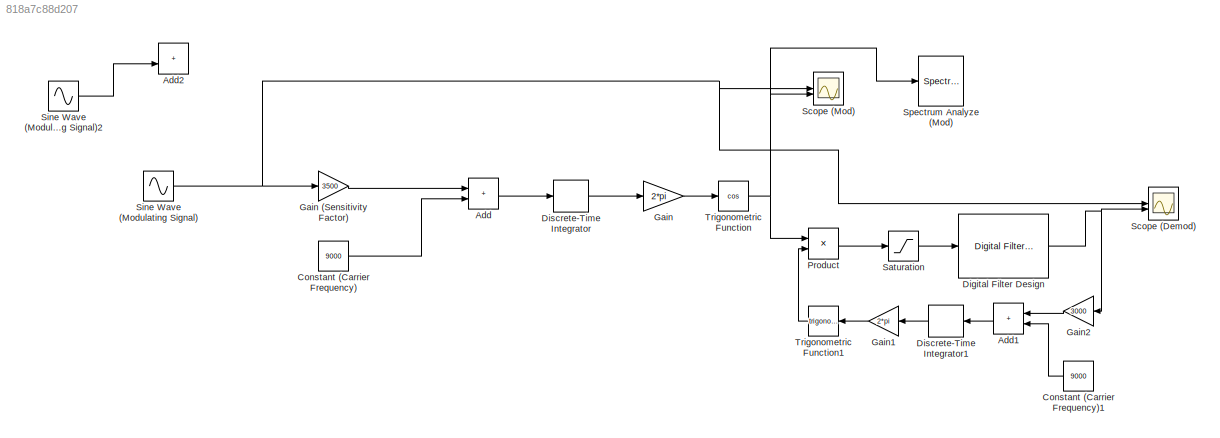
MODEL slx_818a7c88d207
KIND model
CONFIG AbsTol = auto
CONFIG EnableMultiTasking = off
CONFIG FixedStep = auto
CONFIG MaxStep = auto
CONFIG MinStep = auto
CONFIG RelTol = 1e-3
CONFIG SampleTimeConstraint = Unconstrained
CONFIG SolverName = VariableStepAuto
CONFIG StartTime = 0.0
CONFIG StopTime = 10.0
BLOCK [Sum] Add
  IconShape = rectangular
BLOCK [Sum] Add1
  IconShape = rectangular
BLOCK [Sum] Add2
  IconShape = rectangular
BLOCK [Constant] Constant (Carrier Frequency)
  Value = 9000
BLOCK [Constant] Constant (Carrier Frequency)1
  Value = 9000
BLOCK [Reference] Digital Filter Design  REF=dspfdesign/Digital
Filter Design
  SourceBlock = dspfdesign/Digital\nFilter Design
  SourceType = Digital Filter Design
  UserDataPersistent = on
BLOCK [DiscreteIntegrator] Discrete-Time Integrator
  ICPrevOutput = DiscIntNeverNeededParam
  ICPrevScaledInput = DiscIntNeverNeededParam
  InitialConditionSetting = Auto
  SampleTime = 1e-6
BLOCK [DiscreteIntegrator] Discrete-Time Integrator1
  ICPrevOutput = DiscIntNeverNeededParam
  ICPrevScaledInput = DiscIntNeverNeededParam
  InitialConditionSetting = Auto
  SampleTime = 1e-6
BLOCK [Gain] Gain
  Gain = 2*pi
BLOCK [Gain] Gain (Sensitivity Factor)
  Gain = 3500
BLOCK [Gain] Gain1
  Gain = 2*pi
BLOCK [Gain] Gain2
  Gain = 3000
BLOCK [Product] Product
BLOCK [Saturate] Saturation
BLOCK [Scope] Scope (Demod)
  Floating = off
  NumInputPorts = 2
  ScopeSpecificationString = Simulink.scopes.TimeScopeBlockCfg('CurrentConfiguration', extmgr.ConfigurationSet(extmgr.Configuration('Core','General UI',true),extmgr.Configuration('Core','Source UI',true),extmgr.Configuration('Sources','WiredSimulink',true,'DataLoggingVariableName','ScopeData1'),extmgr.Configuration('Visuals','Time Domain',true),extmgr.Configuration('Tools','Plot Navigation',true),extmgr.Configuration('Tools',...<+40ch>
BLOCK [Scope] Scope (Mod)
  Floating = off
  NumInputPorts = 2
  ScopeSpecificationString = Simulink.scopes.TimeScopeBlockCfg('CurrentConfiguration', extmgr.ConfigurationSet(extmgr.Configuration('Core','General UI',true),extmgr.Configuration('Core','Source UI',true),extmgr.Configuration('Sources','WiredSimulink',true),extmgr.Configuration('Visuals','Time Domain',true,'SerializedDisplays',{struct('MinYLimReal','-3.75','MaxYLimReal','3.45277','YLabelReal','','MinYLimMag','0.00000','MaxYLim...<+1561ch>
BLOCK [Sin] Sine Wave (Modulating Signal)
  SampleTime = 1e-6
  Samples = 100
  SineType = Sample based
BLOCK [Sin] Sine Wave (Modulating Signal)2
  Amplitude = 2
  SampleTime = 1e-6
  Samples = 1000
  SineType = Sample based
BLOCK [SpectrumAnalyzer] Spectrum Analyze (Mod)
  GraphicalSettings = {"GraphicalSettings":{"Style":{"BackgroundColor":[0.12941176470588237,0.12941176470588237,0.12941176470588237],"AxesColor":[0.07058823529411765,0.07058823529411765,0.07058823529411765],"LabelsColor":[0.8509803921568627,0.8509803921568627,0.8509803921568627],"PreserveColors":false,"Visible":[true],"LineStyle":["-"],"LineColor":[[1,0.9098039215686274,0.39215686274509803]],"LineWidth":[1.5],"Marker":...<+947ch>
  RBW = 3
  ScopeFrameLocation = window
  SelectedToolstripTab = spectrumAnalyzerToolstrip.channelMeasurementsTab
  Span = 1000000
  StartFrequency = -500000
  StopFrequency = 500000
  WasSavedAsWebScope = on
  WindowPosition = [1.000000,49.000000,1280.000000,729.000000,]
  YLimits = [-254.96952678,54.66463623]
BLOCK [Trigonometry] Trigonometric Function
  Operator = cos
BLOCK [Trigonometry] Trigonometric Function1
LINE Add1:1 -> Discrete-Time Integrator1:1
LINE Add:1 -> Discrete-Time Integrator:1
LINE Constant (Carrier Frequency)1:1 -> Add1:2
LINE Constant (Carrier Frequency):1 -> Add:2
NET Digital Filter Design:1 -> Gain2:1, Scope (Demod):2
LINE Discrete-Time Integrator1:1 -> Gain1:1
LINE Discrete-Time Integrator:1 -> Gain:1
LINE Gain (Sensitivity Factor):1 -> Add:1
LINE Gain1:1 -> Trigonometric Function1:1
LINE Gain2:1 -> Add1:1
LINE Gain:1 -> Trigonometric Function:1
LINE Product:1 -> Saturation:1
LINE Saturation:1 -> Digital Filter Design:1
LINE Sine Wave (Modulating Signal)2:1 -> Add2:2
NET Sine Wave (Modulating Signal):1 -> Gain (Sensitivity Factor):1, Scope (Demod):1, Scope (Mod):1
LINE Trigonometric Function1:1 -> Product:2
NET Trigonometric Function:1 -> Product:1, Scope (Mod):2, Spectrum Analyze (Mod):1
note: NET lines group one-source signal fan-out (src -> all destinations, sorted); 1:1 wires keep LINE
